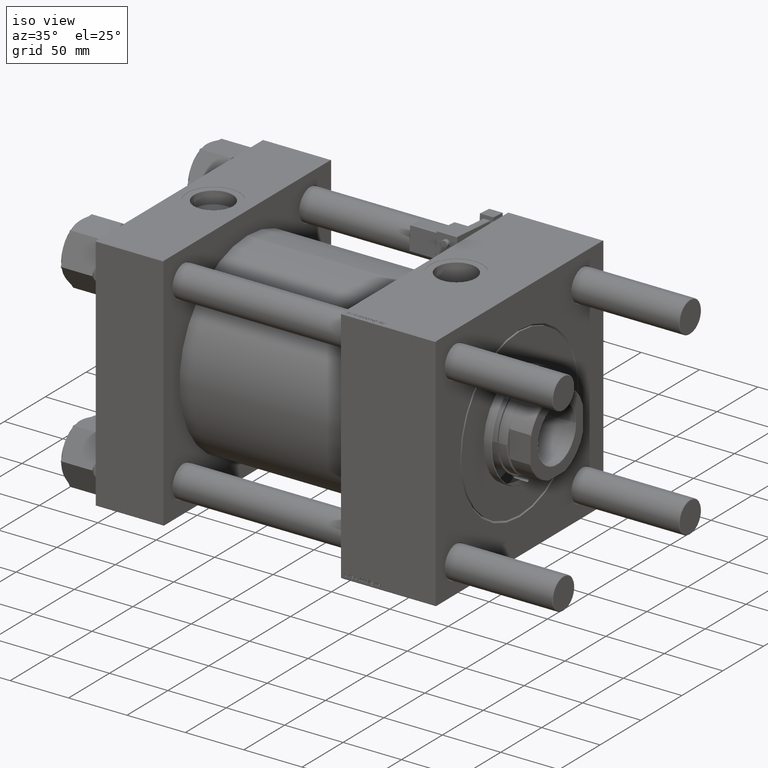
[diagram: clean part render]
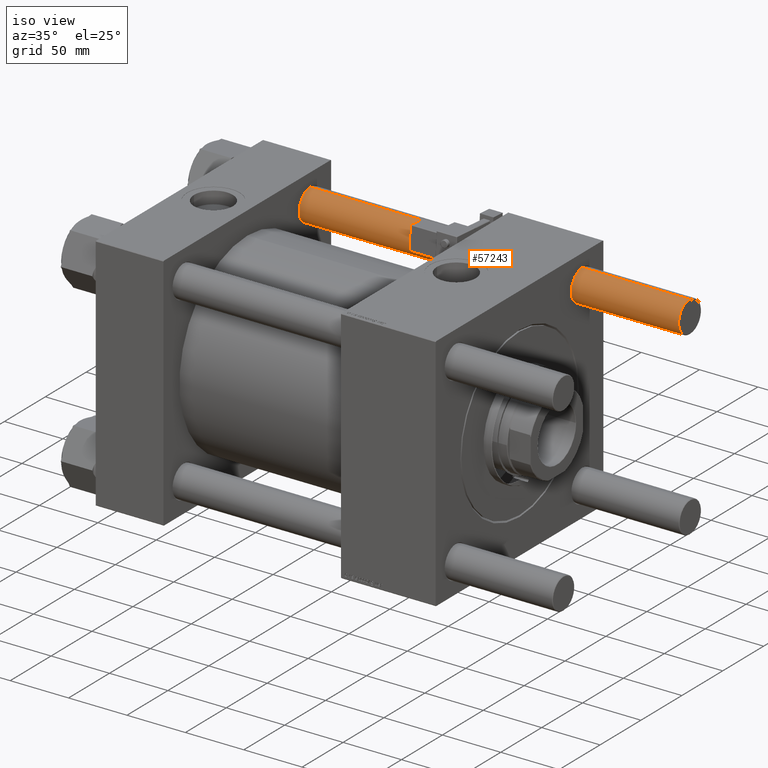
[diagram: same view with one face highlighted and labeled with its STEP entity id]
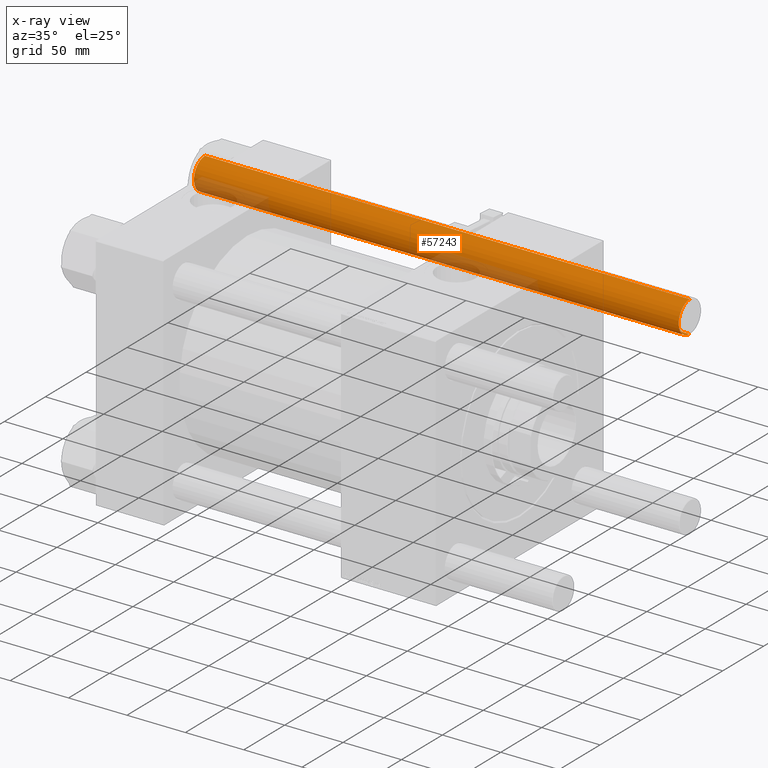
[diagram: x-ray of the same camera — body ghosted, the highlighted face saturated]
A machine part, iso view. The second image highlights one B-rep face of the part: STEP entity #57243.
The next image is the same camera in x-ray: the body ghosted, the highlighted face saturated — about 13% of this face is hidden behind the body in this view.
In plain terms, the highlighted cylindrical surface (edge-blend (fillet) strip) has radius 13.5 mm, axis along (1, -0, -0).
Its self-contained STEP definition (entity closure, byte-faithful):
#3854 = DIRECTION ( 'NONE',  ( -0.000000000000000000, -0.000000000000000000, -1.000000000000000000 ) ) ;
#3880 = DIRECTION ( 'NONE',  ( 1.000000000000000000, 0.000000000000000000, 0.000000000000000000 ) ) ;
#3978 = ORIENTED_EDGE ( 'NONE', *, *, #7289, .T. ) ;
#4149 = CARTESIAN_POINT ( 'NONE',  ( 0.000000000000000000, 0.000000000000000000, 416.0000000000000000 ) ) ;
#7289 = EDGE_CURVE ( 'NONE', #28258, #18211, #20451, .T. ) ;
#7307 = ORIENTED_EDGE ( 'NONE', *, *, #26395, .T. ) ;
#10346 = CARTESIAN_POINT ( 'NONE',  ( -13.50000000000000000, 0.000000000000000000, 415.5000000000002274 ) ) ;
#15473 = DIRECTION ( 'NONE',  ( -0.000000000000000000, -0.000000000000000000, -1.000000000000000000 ) ) ;
#15828 = EDGE_LOOP ( 'NONE', ( #38130, #7307, #3978, #53013 ) ) ;
#15942 = FACE_OUTER_BOUND ( 'NONE', #15828, .T. ) ;
#18211 = VERTEX_POINT ( 'NONE', #51088 ) ;
#19338 = EDGE_CURVE ( 'NONE', #23743, #58013, #39551, .T. ) ;
#20451 = LINE ( 'NONE', #24375, #28728 ) ;
#21758 = DIRECTION ( 'NONE',  ( 1.000000000000000000, 0.000000000000000000, 0.000000000000000000 ) ) ;
#22226 = CYLINDRICAL_SURFACE ( 'NONE', #57887, 13.50000000000000000 ) ;
#23743 = VERTEX_POINT ( 'NONE', #27819 ) ;
#24375 = CARTESIAN_POINT ( 'NONE',  ( -13.50000000000000000, 0.000000000000000000, 416.0000000000000000 ) ) ;
#26395 = EDGE_CURVE ( 'NONE', #23743, #28258, #55260, .T. ) ;
#27819 = CARTESIAN_POINT ( 'NONE',  ( 13.50000000000000000, 1.653273178848926472E-15, 415.5000000000002274 ) ) ;
#28258 = VERTEX_POINT ( 'NONE', #10346 ) ;
#28299 = EDGE_CURVE ( 'NONE', #18211, #58013, #34143, .T. ) ;
#28728 = VECTOR ( 'NONE', #47596, 1000.000000000000000 ) ;
#34143 = CIRCLE ( 'NONE', #49546, 13.50000000000000000 ) ;
#36386 = DIRECTION ( 'NONE',  ( -1.000000000000000000, 0.000000000000000000, 0.000000000000000000 ) ) ;
#38130 = ORIENTED_EDGE ( 'NONE', *, *, #19338, .F. ) ;
#38675 = CARTESIAN_POINT ( 'NONE',  ( 13.50000000000000000, 1.653273178848926472E-15, 416.0000000000000000 ) ) ;
#39551 = LINE ( 'NONE', #38675, #54975 ) ;
#40346 = DIRECTION ( 'NONE',  ( 0.000000000000000000, 0.000000000000000000, -1.000000000000000000 ) ) ;
#42765 = AXIS2_PLACEMENT_3D ( 'NONE', #45165, #40346, #3880 ) ;
#45165 = CARTESIAN_POINT ( 'NONE',  ( 0.000000000000000000, 0.000000000000000000, 415.5000000000002274 ) ) ;
#47596 = DIRECTION ( 'NONE',  ( -0.000000000000000000, -0.000000000000000000, -1.000000000000000000 ) ) ;
#48775 = CARTESIAN_POINT ( 'NONE',  ( 13.50000000000000000, 1.653273178848926472E-15, 0.5000000000002779998 ) ) ;
#49546 = AXIS2_PLACEMENT_3D ( 'NONE', #53125, #57935, #21758 ) ;
#51088 = CARTESIAN_POINT ( 'NONE',  ( -13.50000000000000000, 0.000000000000000000, 0.5000000000002779998 ) ) ;
#53013 = ORIENTED_EDGE ( 'NONE', *, *, #28299, .T. ) ;
#53125 = CARTESIAN_POINT ( 'NONE',  ( 0.000000000000000000, 0.000000000000000000, 0.5000000000002779998 ) ) ;
#54975 = VECTOR ( 'NONE', #15473, 1000.000000000000000 ) ;
#55260 = CIRCLE ( 'NONE', #42765, 13.50000000000000000 ) ;
#57243 = ADVANCED_FACE ( 'NONE', ( #15942 ), #22226, .T. ) ;
#57887 = AXIS2_PLACEMENT_3D ( 'NONE', #4149, #3854, #36386 ) ;
#57935 = DIRECTION ( 'NONE',  ( -0.000000000000000000, -0.000000000000000000, 1.000000000000000000 ) ) ;
#58013 = VERTEX_POINT ( 'NONE', #48775 ) ;